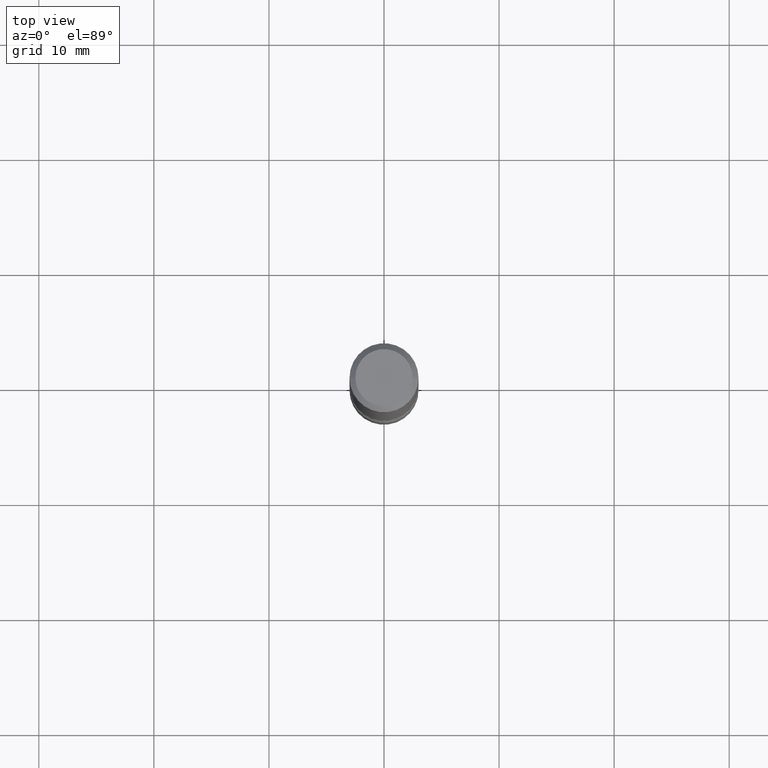
[diagram: clean part render]
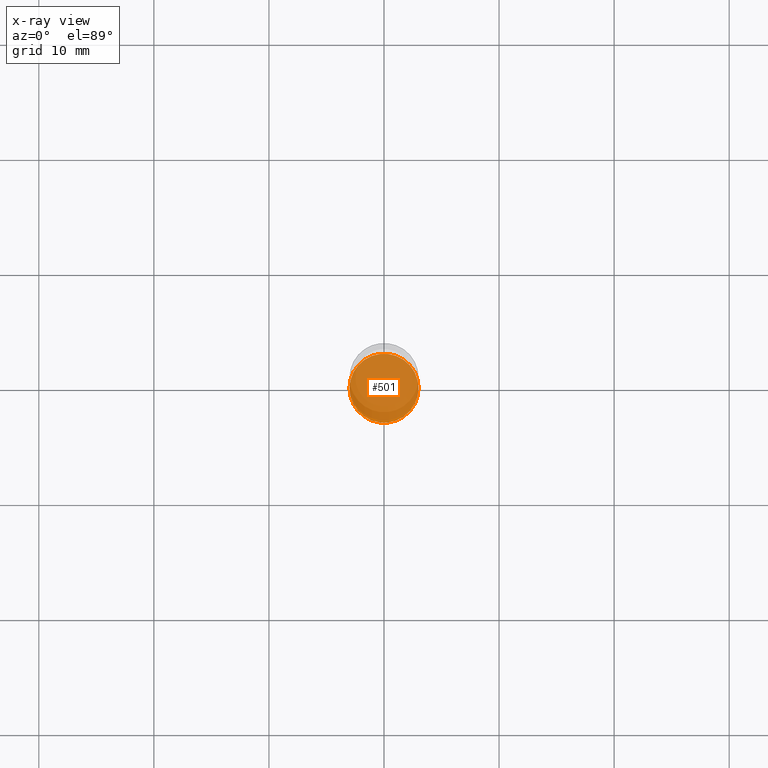
[diagram: x-ray — body ghosted, one internal face saturated and labeled with its STEP entity id]
A machine part, top view, then the same camera in x-ray: the body is ghosted and one INTERNAL B-rep face — a face not visible from any outside direction — is saturated and labeled: STEP entity #501.
In plain terms, the highlighted planar face has unit normal (0, -0, -1).
Its self-contained STEP definition (entity closure, byte-faithful):
#29 = DIRECTION ( 'NONE',  ( 2.438088387897960049E-29, -3.491481338843145188E-15, -1.000000000000000000 ) ) ;
#33 = CARTESIAN_POINT ( 'NONE',  ( -1.638148592442117198E-29, -1.693862559428012074E-14, -2.086600000000001121 ) ) ;
#44 = DIRECTION ( 'NONE',  ( -1.000000000000000000, 6.982962677686265922E-15, -4.876176775795935793E-29 ) ) ;
#84 = PLANE ( 'NONE',  #197 ) ;
#89 = CARTESIAN_POINT ( 'NONE',  ( 5.102715210985908518E-29, -7.285324961630110572E-15, -2.086600000000001121 ) ) ;
#99 = CIRCLE ( 'NONE', #479, 0.1181000000000004407 ) ;
#100 = CIRCLE ( 'NONE', #235, 0.1181000000000004407 ) ;
#137 = ORIENTED_EDGE ( 'NONE', *, *, #185, .T. ) ;
#141 = DIRECTION ( 'NONE',  ( 1.000000000000000000, -6.982962677686262766E-15, 0.000000000000000000 ) ) ;
#185 = EDGE_CURVE ( 'NONE', #416, #532, #99, .T. ) ;
#197 = AXIS2_PLACEMENT_3D ( 'NONE', #33, #29, #44 ) ;
#235 = AXIS2_PLACEMENT_3D ( 'NONE', #427, #491, #253 ) ;
#243 = ORIENTED_EDGE ( 'NONE', *, *, #431, .T. ) ;
#253 = DIRECTION ( 'NONE',  ( 1.000000000000000000, -6.982962677686262766E-15, 0.000000000000000000 ) ) ;
#260 = EDGE_LOOP ( 'NONE', ( #243, #137 ) ) ;
#340 = CARTESIAN_POINT ( 'NONE',  ( -0.1181000000000004407, -7.099081001061096009E-15, -2.086600000000001121 ) ) ;
#345 = CARTESIAN_POINT ( 'NONE',  ( 0.1181000000000004407, -8.110012853864861990E-15, -2.086600000000001121 ) ) ;
#416 = VERTEX_POINT ( 'NONE', #340 ) ;
#427 = CARTESIAN_POINT ( 'NONE',  ( 5.102715210985908518E-29, -7.285324961630110572E-15, -2.086600000000001121 ) ) ;
#428 = FACE_OUTER_BOUND ( 'NONE', #260, .T. ) ;
#431 = EDGE_CURVE ( 'NONE', #532, #416, #100, .T. ) ;
#479 = AXIS2_PLACEMENT_3D ( 'NONE', #89, #510, #141 ) ;
#491 = DIRECTION ( 'NONE',  ( -2.445468806185136597E-29, 3.491481338843145583E-15, 1.000000000000000000 ) ) ;
#501 = ADVANCED_FACE ( 'NONE', ( #428 ), #84, .F. ) ;
#510 = DIRECTION ( 'NONE',  ( -2.445468806185136597E-29, 3.491481338843145583E-15, 1.000000000000000000 ) ) ;
#532 = VERTEX_POINT ( 'NONE', #345 ) ;